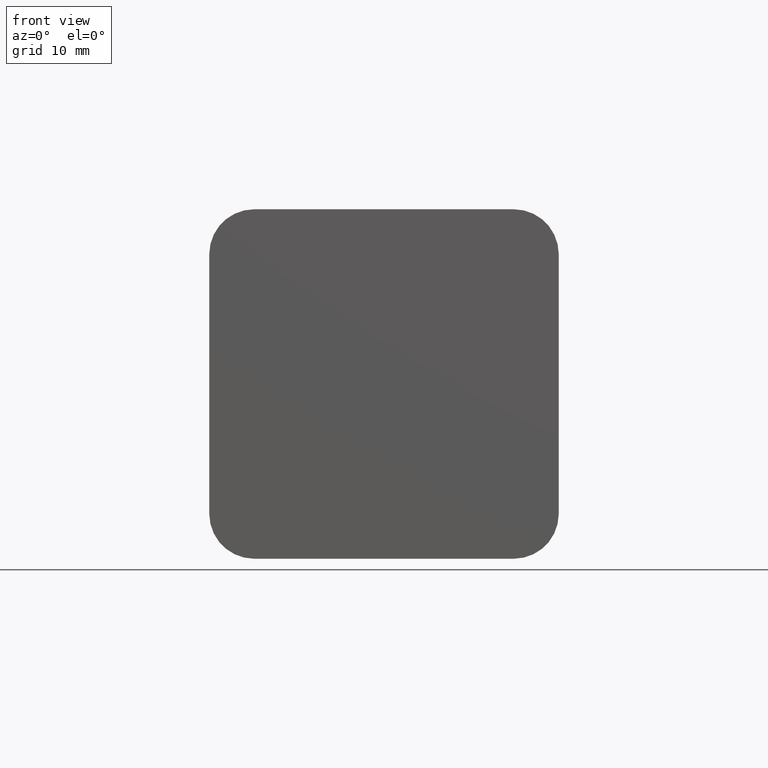
[diagram: clean part render]
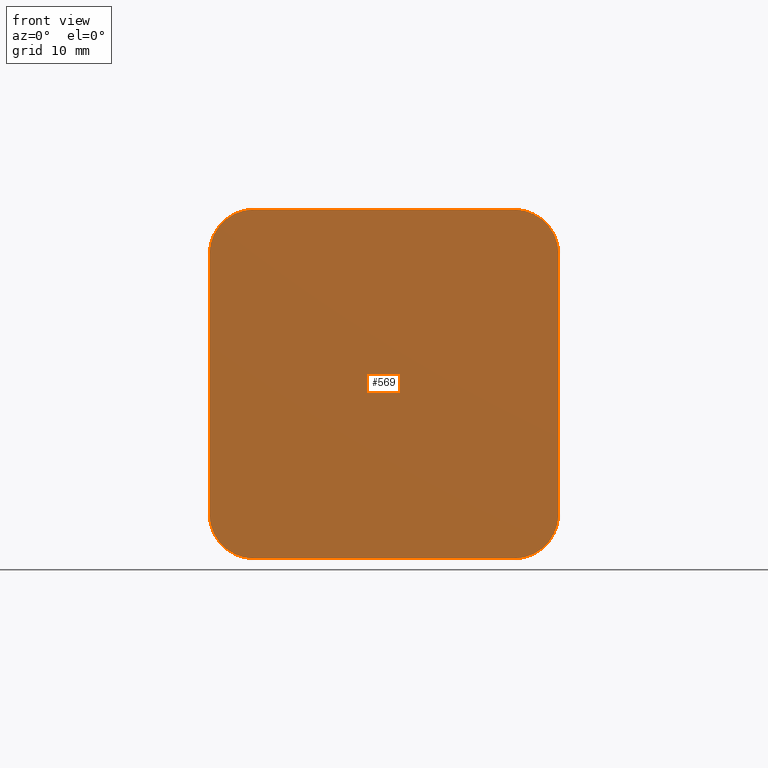
[diagram: same view with one face highlighted and labeled with its STEP entity id]
A machine part, front view. The second image highlights one B-rep face of the part: STEP entity #569.
In plain terms, the highlighted planar face has unit normal (0, 1, 0).
Its self-contained STEP definition (entity closure, byte-faithful):
#5 = DIRECTION ( 'NONE',  ( 9.912705577010325500E-017, 0.0000000000000000000, 1.000000000000000000 ) ) ;
#12 = CARTESIAN_POINT ( 'NONE',  ( -17.49999999999999600, 0.0000000000000000000, 12.99999999999999800 ) ) ;
#66 = AXIS2_PLACEMENT_3D ( 'NONE', #181, #864, #650 ) ;
#68 = CARTESIAN_POINT ( 'NONE',  ( -17.50000000000000000, 0.0000000000000000000, -17.50000000000000000 ) ) ;
#97 = CARTESIAN_POINT ( 'NONE',  ( -13.00000000000000000, 0.0000000000000000000, 13.00000000000000000 ) ) ;
#102 = DIRECTION ( 'NONE',  ( -1.982541115402065100E-016, -0.0000000000000000000, -1.000000000000000000 ) ) ;
#119 = AXIS2_PLACEMENT_3D ( 'NONE', #856, #581, #517 ) ;
#124 = EDGE_CURVE ( 'NONE', #450, #676, #304, .T. ) ;
#147 = CARTESIAN_POINT ( 'NONE',  ( 0.0000000000000000000, 0.0000000000000000000, 0.0000000000000000000 ) ) ;
#166 = DIRECTION ( 'NONE',  ( -0.0000000000000000000, -1.000000000000000000, -0.0000000000000000000 ) ) ;
#175 = VERTEX_POINT ( 'NONE', #397 ) ;
#177 = LINE ( 'NONE', #409, #626 ) ;
#181 = CARTESIAN_POINT ( 'NONE',  ( 13.00000000000000000, 0.0000000000000000000, 13.00000000000000000 ) ) ;
#187 = DIRECTION ( 'NONE',  ( 1.000000000000000000, 0.0000000000000000000, 0.0000000000000000000 ) ) ;
#189 = EDGE_CURVE ( 'NONE', #416, #282, #625, .T. ) ;
#202 = FACE_OUTER_BOUND ( 'NONE', #604, .T. ) ;
#203 = DIRECTION ( 'NONE',  ( 0.0000000000000000000, -0.0000000000000000000, 1.000000000000000000 ) ) ;
#207 = ORIENTED_EDGE ( 'NONE', *, *, #189, .F. ) ;
#210 = AXIS2_PLACEMENT_3D ( 'NONE', #97, #443, #439 ) ;
#241 = CIRCLE ( 'NONE', #291, 4.500000000000002700 ) ;
#266 = VERTEX_POINT ( 'NONE', #850 ) ;
#282 = VERTEX_POINT ( 'NONE', #368 ) ;
#291 = AXIS2_PLACEMENT_3D ( 'NONE', #572, #166, #374 ) ;
#304 = LINE ( 'NONE', #68, #463 ) ;
#305 = LINE ( 'NONE', #319, #351 ) ;
#319 = CARTESIAN_POINT ( 'NONE',  ( -17.49999999999999600, 0.0000000000000000000, 17.50000000000000000 ) ) ;
#323 = ORIENTED_EDGE ( 'NONE', *, *, #597, .F. ) ;
#336 = DIRECTION ( 'NONE',  ( -1.000000000000000000, -0.0000000000000000000, -0.0000000000000000000 ) ) ;
#338 = VECTOR ( 'NONE', #102, 1000.000000000000000 ) ;
#339 = CIRCLE ( 'NONE', #119, 4.500000000000002700 ) ;
#348 = EDGE_CURVE ( 'NONE', #416, #564, #755, .T. ) ;
#351 = VECTOR ( 'NONE', #187, 1000.000000000000000 ) ;
#355 = ORIENTED_EDGE ( 'NONE', *, *, #826, .T. ) ;
#364 = CARTESIAN_POINT ( 'NONE',  ( -13.00000000000000000, 0.0000000000000000000, 17.50000000000000000 ) ) ;
#368 = CARTESIAN_POINT ( 'NONE',  ( 17.49999999999999600, 0.0000000000000000000, -13.00000000000000000 ) ) ;
#373 = ORIENTED_EDGE ( 'NONE', *, *, #348, .T. ) ;
#374 = DIRECTION ( 'NONE',  ( 0.0000000000000000000, 0.0000000000000000000, 1.000000000000000000 ) ) ;
#397 = CARTESIAN_POINT ( 'NONE',  ( -12.99999999999999800, 0.0000000000000000000, -17.50000000000000000 ) ) ;
#399 = EDGE_CURVE ( 'NONE', #266, #282, #339, .T. ) ;
#409 = CARTESIAN_POINT ( 'NONE',  ( -17.50000000000000000, 0.0000000000000000000, -17.50000000000000000 ) ) ;
#416 = VERTEX_POINT ( 'NONE', #444 ) ;
#428 = ORIENTED_EDGE ( 'NONE', *, *, #124, .F. ) ;
#439 = DIRECTION ( 'NONE',  ( 0.0000000000000000000, 0.0000000000000000000, -1.000000000000000000 ) ) ;
#441 = ORIENTED_EDGE ( 'NONE', *, *, #399, .T. ) ;
#443 = DIRECTION ( 'NONE',  ( -0.0000000000000000000, -1.000000000000000000, 0.0000000000000000000 ) ) ;
#444 = CARTESIAN_POINT ( 'NONE',  ( 17.50000000000000000, 0.0000000000000000000, 13.00000000000000000 ) ) ;
#445 = EDGE_CURVE ( 'NONE', #881, #564, #305, .T. ) ;
#450 = VERTEX_POINT ( 'NONE', #588 ) ;
#463 = VECTOR ( 'NONE', #5, 1000.000000000000000 ) ;
#473 = CARTESIAN_POINT ( 'NONE',  ( 13.00000000000000200, 0.0000000000000000000, 17.50000000000000000 ) ) ;
#485 = CIRCLE ( 'NONE', #210, 4.500000000000000900 ) ;
#499 = ORIENTED_EDGE ( 'NONE', *, *, #823, .T. ) ;
#517 = DIRECTION ( 'NONE',  ( 0.0000000000000000000, 0.0000000000000000000, -1.000000000000000000 ) ) ;
#564 = VERTEX_POINT ( 'NONE', #473 ) ;
#569 = ADVANCED_FACE ( 'NONE', ( #202 ), #608, .F. ) ;
#572 = CARTESIAN_POINT ( 'NONE',  ( -13.00000000000000000, 0.0000000000000000000, -13.00000000000000000 ) ) ;
#581 = DIRECTION ( 'NONE',  ( -0.0000000000000000000, -1.000000000000000000, 0.0000000000000000000 ) ) ;
#588 = CARTESIAN_POINT ( 'NONE',  ( -17.50000000000000000, 0.0000000000000000000, -13.00000000000000000 ) ) ;
#597 = EDGE_CURVE ( 'NONE', #266, #175, #177, .T. ) ;
#604 = EDGE_LOOP ( 'NONE', ( #428, #355, #323, #441, #207, #373, #615, #499 ) ) ;
#608 = PLANE ( 'NONE',  #666 ) ;
#615 = ORIENTED_EDGE ( 'NONE', *, *, #445, .F. ) ;
#625 = LINE ( 'NONE', #702, #338 ) ;
#626 = VECTOR ( 'NONE', #336, 1000.000000000000000 ) ;
#650 = DIRECTION ( 'NONE',  ( 0.0000000000000000000, 0.0000000000000000000, -1.000000000000000000 ) ) ;
#666 = AXIS2_PLACEMENT_3D ( 'NONE', #147, #817, #203 ) ;
#676 = VERTEX_POINT ( 'NONE', #12 ) ;
#702 = CARTESIAN_POINT ( 'NONE',  ( 17.49999999999999600, 0.0000000000000000000, -17.50000000000000000 ) ) ;
#755 = CIRCLE ( 'NONE', #66, 4.500000000000002700 ) ;
#817 = DIRECTION ( 'NONE',  ( 0.0000000000000000000, 1.000000000000000000, 0.0000000000000000000 ) ) ;
#823 = EDGE_CURVE ( 'NONE', #881, #676, #485, .T. ) ;
#826 = EDGE_CURVE ( 'NONE', #450, #175, #241, .T. ) ;
#850 = CARTESIAN_POINT ( 'NONE',  ( 13.00000000000000000, 0.0000000000000000000, -17.50000000000000000 ) ) ;
#856 = CARTESIAN_POINT ( 'NONE',  ( 13.00000000000000000, 0.0000000000000000000, -13.00000000000000000 ) ) ;
#864 = DIRECTION ( 'NONE',  ( -0.0000000000000000000, -1.000000000000000000, 0.0000000000000000000 ) ) ;
#881 = VERTEX_POINT ( 'NONE', #364 ) ;